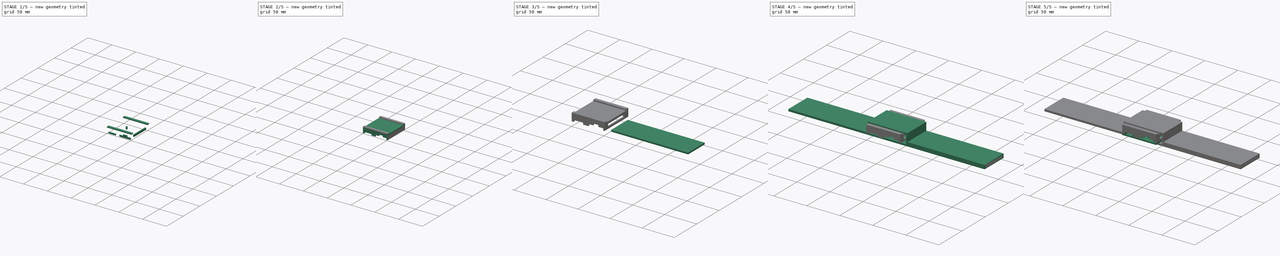
[diagram: build sequence overview — one tinted view per stage of 5, left to right]
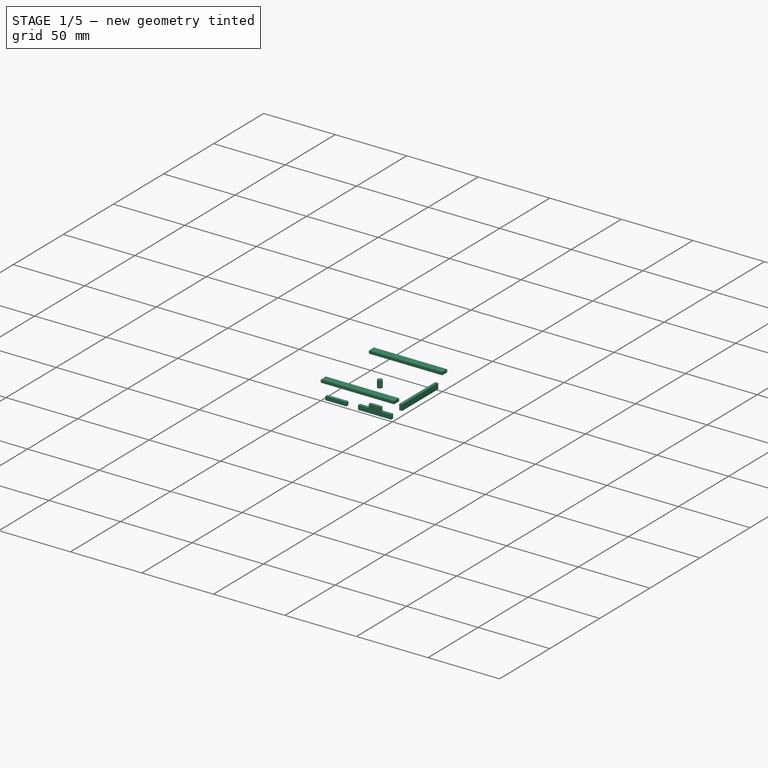
[diagram: stage 1 of 5 — iso view after this stage's code; geometry added in this stage tinted green]
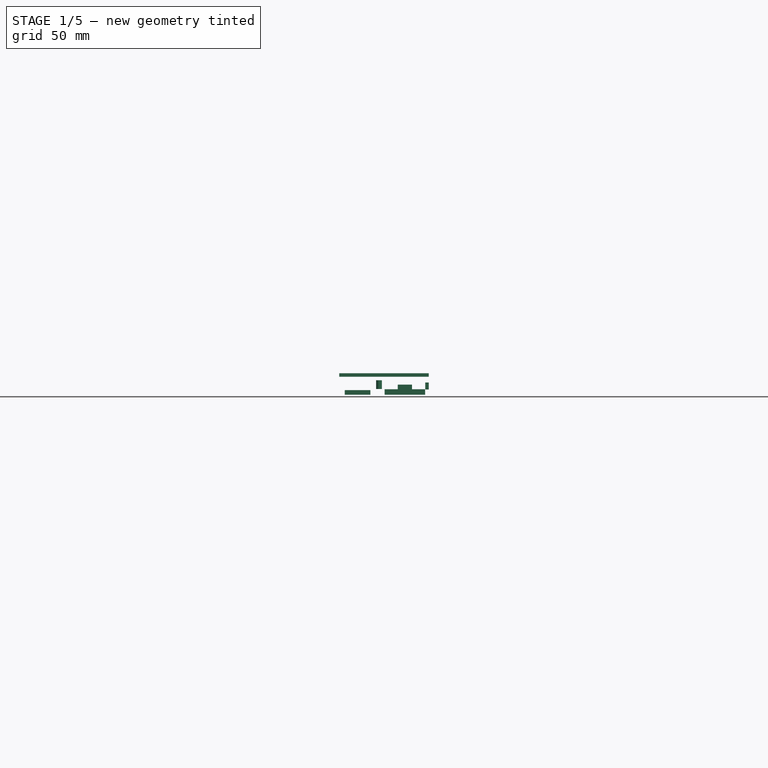
[diagram: stage 1 of 5 — front view after this stage's code; geometry added in this stage tinted green]
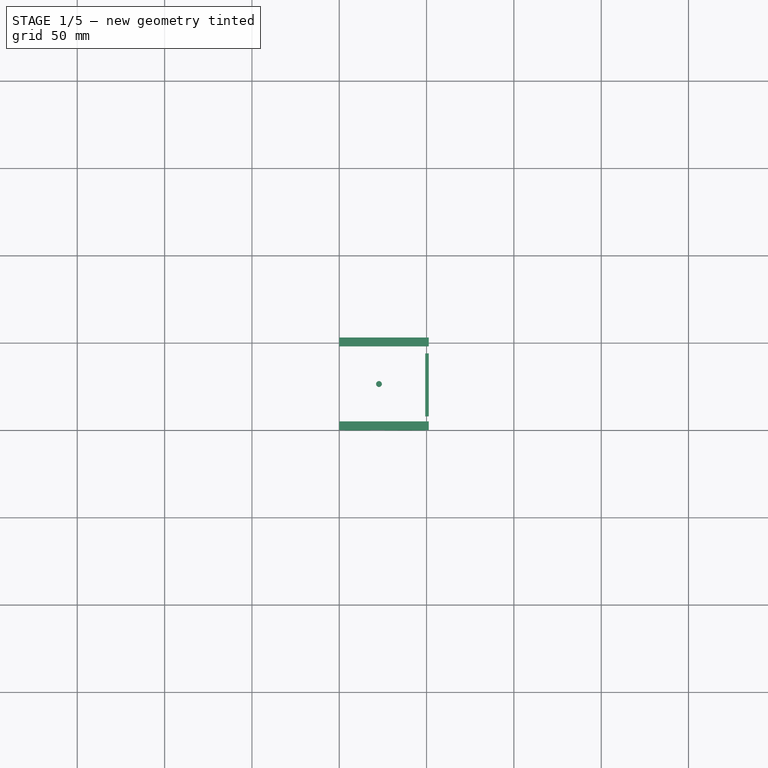
[diagram: stage 1 of 5 — top view after this stage's code; geometry added in this stage tinted green]
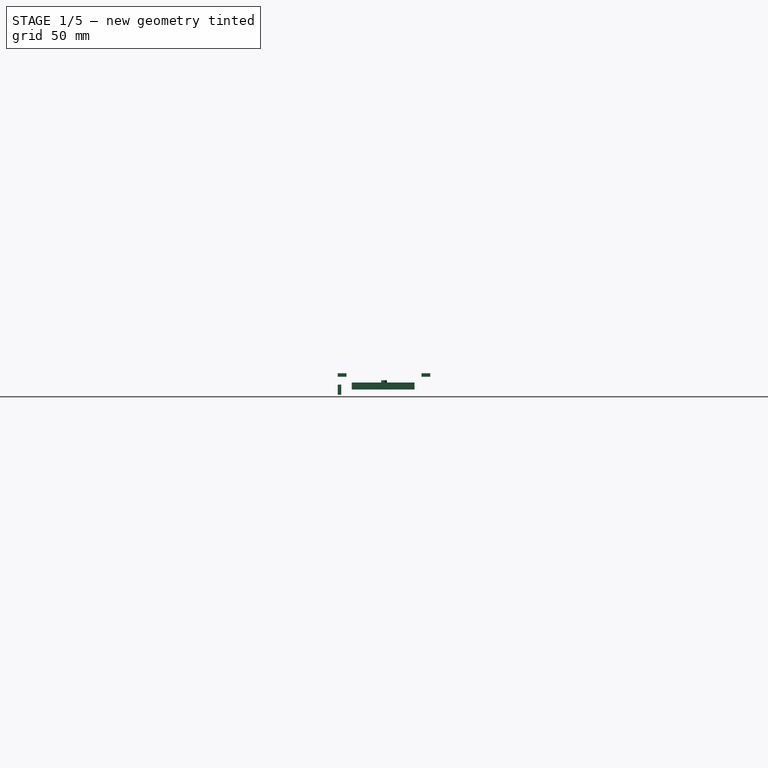
[diagram: stage 1 of 5 — right view after this stage's code; geometry added in this stage tinted green]
FCSTD DOCUMENT  (FreeCAD 0.20R29410 (Git))
Label: armBandV2
License: All rights reserved
LicenseURL: http://en.wikipedia.org/wiki/All_rights_reserved
objects: Part::Feature×47, Sketcher::SketchObject×19, Part::Extrusion×19, Part::MultiFuse×7, App::Part×5, Part::Cut×5, Part::Box×1
note: 98 computed .brp shape members not serialized (recipe doc carries the construction recipe); baked Part::Feature solids carry a one-line shape summary decoded from their .brp

FEATURE [Part::Feature] Part__Feature094  label="m211"
  Placement = pos=(22.75,26.5,10) rot=(0,0,1;0rad)
  shape: bbox 3.801 x 3.801 x 12.02 mm, 126 faces (baked)
FEATURE [Sketcher::SketchObject] Sketch017
  FullyConstrained = true
  Placement = pos=(0,0,0) rot=(1,0,0;1.5708rad)
  sketch-geometry (4):
    g0: LineSegment StartX=33.5 StartY=7.8 StartZ=0 EndX=41.65 EndY=7.8 EndZ=0
    g1: LineSegment StartX=41.65 StartY=7.8 StartZ=0 EndX=41.65 EndY=5.15 EndZ=0
    g2: LineSegment StartX=41.65 StartY=5.15 StartZ=0 EndX=33.5 EndY=5.15 EndZ=0
    g3: LineSegment StartX=33.5 StartY=5.15 StartZ=0 EndX=33.5 EndY=7.8 EndZ=0
  constraints (12):
    c: Coincident(g0,g1)
    c: Coincident(g1,g2)
    c: Coincident(g2,g3)
    c: Coincident(g3,g0)
    c: Horizontal(g0)
    c: Horizontal(g2)
    c: Vertical(g1)
    c: Vertical(g3)
    c: DistanceX(g2) = 33.5
    c: DistanceY(g2) = 5.15
    c: DistanceX(g0,g0) = 8.15
    c: DistanceY(g3,g3) = 2.65
FEATURE [Part::Extrusion] Extrude013  label="topCut001"
  Base = -> Sketch017
  Dir = (0,-1,-3e-16)
  DirMode = 2
  FaceMakerClass = Part::FaceMakerBullseye
  LengthFwd = 2
  LengthRev = 0
  Reversed = true
  Solid = true
  Symmetric = false
FEATURE [Sketcher::SketchObject] Sketch010
  FullyConstrained = true
  Placement = pos=(0,0,0) rot=(1,0,0;1.5708rad)
  sketch-geometry (8):
    g0: LineSegment StartX=3.15 StartY=4.65 StartZ=0 EndX=17.85 EndY=4.65 EndZ=0
    g1: LineSegment StartX=17.85 StartY=4.65 StartZ=0 EndX=17.85 EndY=2 EndZ=0
    g2: LineSegment StartX=17.85 StartY=2 StartZ=0 EndX=3.15 EndY=2 EndZ=0
    g3: LineSegment StartX=3.15 StartY=2 StartZ=0 EndX=3.15 EndY=4.65 EndZ=0
    g4: LineSegment StartX=26 StartY=5.15 StartZ=0 EndX=49.15 EndY=5.15 EndZ=0
    g5: LineSegment StartX=49.15 StartY=5.15 StartZ=0 EndX=49.15 EndY=2 EndZ=0
    g6: LineSegment StartX=49.15 StartY=2 StartZ=0 EndX=26 EndY=2 EndZ=0
    g7: LineSegment StartX=26 StartY=2 StartZ=0 EndX=26 EndY=5.15 EndZ=0
  constraints (24):
    c: Coincident(g0,g1)
    c: Coincident(g1,g2)
    c: Coincident(g2,g3)
    c: Coincident(g3,g0)
    c: Horizontal(g0)
    c: Horizontal(g2)
    c: Vertical(g1)
    c: Vertical(g3)
    c: Coincident(g4,g5)
    c: Coincident(g5,g6)
    c: Coincident(g6,g7)
    c: Coincident(g7,g4)
    c: Horizontal(g4)
    c: Horizontal(g6)
    c: Vertical(g5)
    c: Vertical(g7)
    c: DistanceY(g2) = 2
    c: DistanceX(g2) = 3.15
    c: DistanceY(g2,g0) = 2.65
    c: DistanceX(g0,g0) = 14.7
    c: DistanceX(g6) = 26
    c: DistanceX(g6,g5) = 23.15
    c: DistanceY(g6,g4) = 3.15
    c: DistanceY(g6) = 2
FEATURE [Part::Extrusion] Extrude006  label="topCuts"
  Base = -> Sketch010
  Dir = (0,-1,2e-16)
  DirMode = 2
  FaceMakerClass = Part::FaceMakerBullseye
  LengthFwd = 2
  LengthRev = 0
  Reversed = true
  Solid = true
  Symmetric = false
FEATURE [Sketcher::SketchObject] Sketch
  FullyConstrained = true
  Placement = pos=(0,0,10.25) rot=(0,0,1;0rad)
  sketch-geometry (1):
    g0: Circle CenterX=22.75 CenterY=26.5 CenterZ=0 NormalX=0 NormalY=0 NormalZ=1 AngleXU=0 Radius=1.65
  constraints (3):
    c: DistanceX(g0) = 22.75
    c: DistanceY(g0) = 26.5
    c: Diameter(g0) = 3.3
FEATURE [Part::Extrusion] Extrude026  label="topCut"
  Base = -> Sketch
  Dir = (0,0,1)
  DirMode = 2
  FaceMakerClass = Part::FaceMakerBullseye
  LengthFwd = 5
  LengthRev = 0
  Reversed = true
  Solid = true
  Symmetric = false
FEATURE [Part::MultiFuse] Fusion007  label="topCuts001"
  Shapes = -> [Extrude026,Extrude013,Extrude006]
FEATURE [Sketcher::SketchObject] Sketch029
  FullyConstrained = true
  Placement = pos=(0,0,12.25) rot=(0,0,1;0rad)
  sketch-geometry (8):
    g0: LineSegment StartX=0 StartY=0 StartZ=0 EndX=51.25 EndY=0 EndZ=0
    g1: LineSegment StartX=51.25 StartY=0 StartZ=0 EndX=51.25 EndY=5 EndZ=0
    g2: LineSegment StartX=51.25 StartY=5 StartZ=0 EndX=0 EndY=5 EndZ=0
    g3: LineSegment StartX=0 StartY=5 StartZ=0 EndX=0 EndY=0 EndZ=0
    g4: LineSegment StartX=0 StartY=53 StartZ=0 EndX=51.25 EndY=53 EndZ=0
    g5: LineSegment StartX=51.25 StartY=53 StartZ=0 EndX=51.25 EndY=48 EndZ=0
    g6: LineSegment StartX=51.25 StartY=48 StartZ=0 EndX=0 EndY=48 EndZ=0
    g7: LineSegment StartX=0 StartY=48 StartZ=0 EndX=0 EndY=53 EndZ=0
  constraints (23):
    c: Coincident(g0,g1)
    c: Coincident(g1,g2)
    c: Coincident(g2,g3)
    c: Coincident(g3,g0)
    c: Horizontal(g0)
    c: Horizontal(g2)
    c: Vertical(g1)
    c: Vertical(g3)
    c: Coincident(g0,g-1)
    c: DistanceY(g3,g3) = 5
    c: DistanceX(g2,g2) = 51.25
    c: Coincident(g4,g5)
    c: Coincident(g5,g6)
    c: Coincident(g6,g7)
    c: Coincident(g7,g4)
    c: Horizontal(g4)
    c: Horizontal(g6)
    c: Vertical(g5)
    c: Vertical(g7)
    c: PointOnObject(g4,g-2)
    c: DistanceX(g1,g5) = 0
    c: DistanceY(g6,g4) = 5
    c: DistanceY(g4) = 53
FEATURE [Part::Extrusion] Extrude027  label="top006"
  Base = -> Sketch029
  Dir = (0,0,1)
  DirMode = 2
  FaceMakerClass = Part::FaceMakerBullseye
  LengthFwd = 2
  LengthRev = 0
  Solid = true
  Symmetric = false
FEATURE [Sketcher::SketchObject] Sketch035
  FullyConstrained = true
  Placement = pos=(49.25,0,0) rot=(0.57735,0.57735,0.57735;2.0944rad)
  sketch-geometry (4):
    g0: LineSegment StartX=8 StartY=9 StartZ=0 EndX=44 EndY=9 EndZ=0
    g1: LineSegment StartX=44 StartY=9 StartZ=0 EndX=44 EndY=5 EndZ=0
    g2: LineSegment StartX=44 StartY=5 StartZ=0 EndX=8 EndY=5 EndZ=0
    g3: LineSegment StartX=8 StartY=5 StartZ=0 EndX=8 EndY=9 EndZ=0
  constraints (12):
    c: Coincident(g0,g1)
    c: Coincident(g1,g2)
    c: Coincident(g2,g3)
    c: Coincident(g3,g0)
    c: Horizontal(g0)
    c: Horizontal(g2)
    c: Vertical(g1)
    c: Vertical(g3)
    c: DistanceY(g3,g3) = 4
    c: DistanceY(g2) = 5
    c: DistanceX(g2) = 8
    c: DistanceX(g0,g0) = 36
FEATURE [Part::Extrusion] Extrude033  label="topCut002"
  Base = -> Sketch035
  Dir = (1,-2e-16,2e-16)
  DirMode = 2
  FaceMakerClass = Part::FaceMakerBullseye
  LengthFwd = 2
  LengthRev = 0
  Solid = true
  Symmetric = false
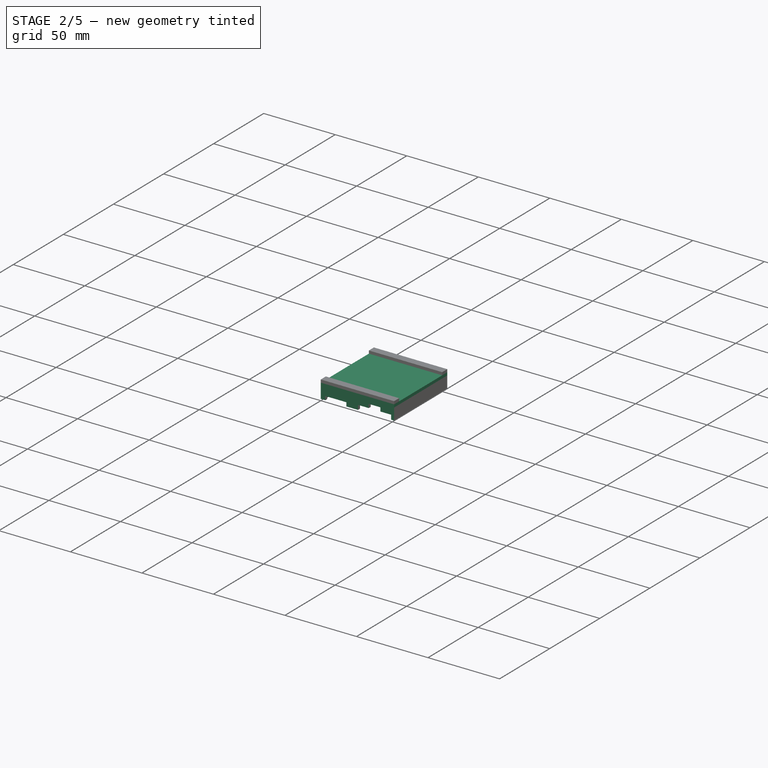
[diagram: stage 2 of 5 — iso view after this stage's code; geometry added in this stage tinted green]
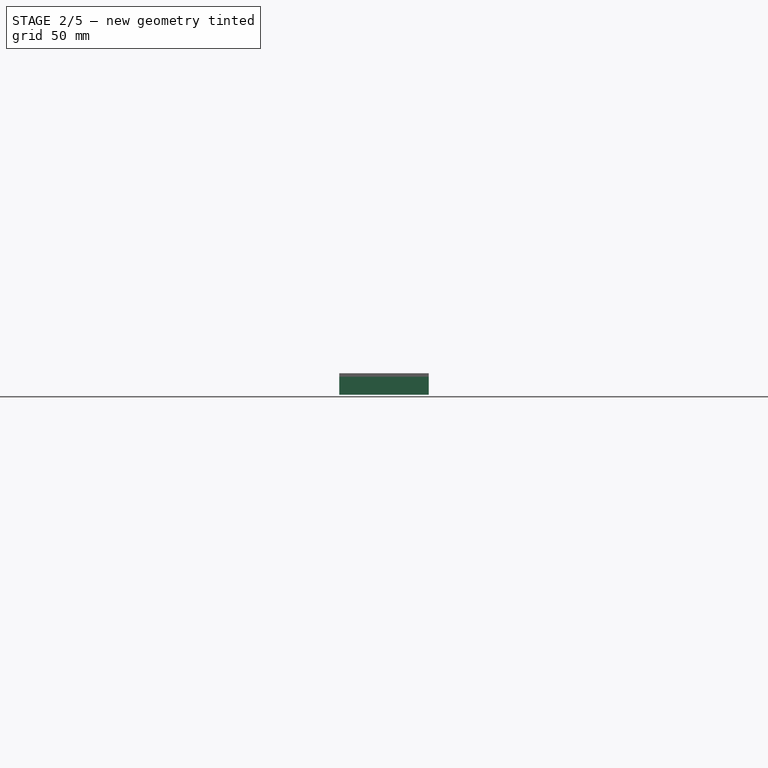
[diagram: stage 2 of 5 — front view after this stage's code; geometry added in this stage tinted green]
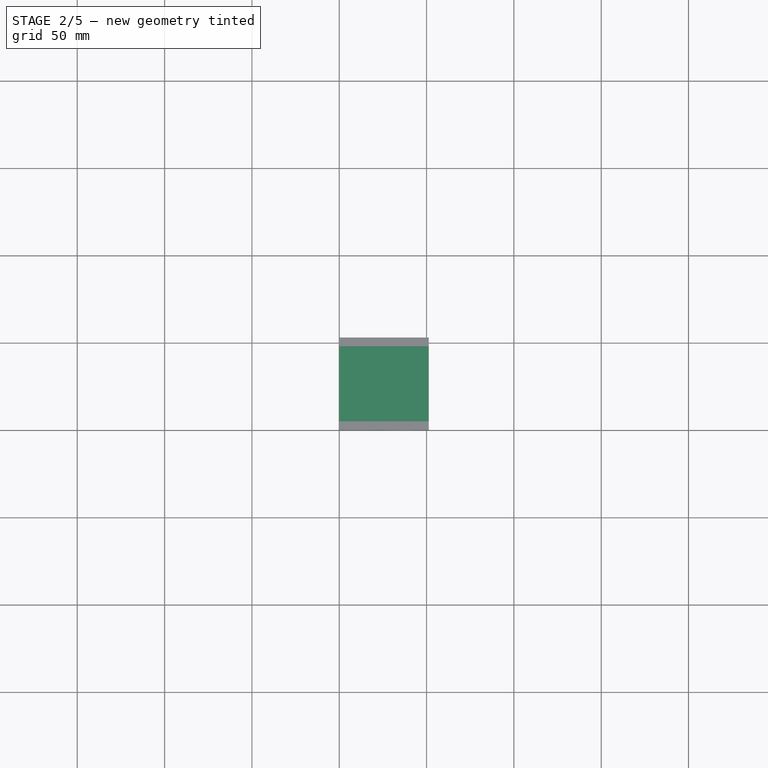
[diagram: stage 2 of 5 — top view after this stage's code; geometry added in this stage tinted green]
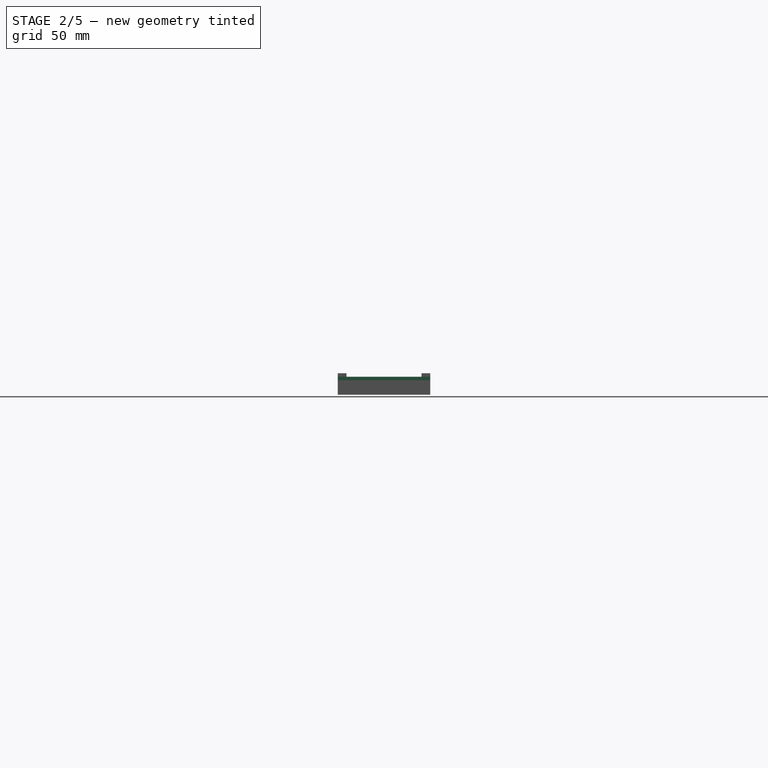
[diagram: stage 2 of 5 — right view after this stage's code; geometry added in this stage tinted green]
FEATURE [Sketcher::SketchObject] Sketch007
  FullyConstrained = true
  Placement = pos=(0,0,2) rot=(0,0,1;0rad)
  sketch-geometry (24):
    g0: Circle CenterX=28.675 CenterY=48.25 CenterZ=0 NormalX=0 NormalY=0 NormalZ=1 AngleXU=0 Radius=1
    g1: Circle CenterX=46.475 CenterY=48.25 CenterZ=0 NormalX=0 NormalY=0 NormalZ=1 AngleXU=0 Radius=1
    g2: Circle CenterX=28.675 CenterY=2.55 CenterZ=0 NormalX=0 NormalY=0 NormalZ=1 AngleXU=0 Radius=1
    g3: Circle CenterX=46.475 CenterY=2.55 CenterZ=0 NormalX=0 NormalY=0 NormalZ=1 AngleXU=0 Radius=1
    g4: LineSegment StartX=3.25 StartY=0 StartZ=0 EndX=5.25 EndY=0 EndZ=0
    g5: LineSegment StartX=5.25 StartY=0 StartZ=0 EndX=5.25 EndY=5.25 EndZ=0
    g6: LineSegment StartX=5.25 StartY=5.25 StartZ=0 EndX=6.75 EndY=5.25 EndZ=0
    g7: LineSegment StartX=6.75 StartY=5.25 StartZ=0 EndX=6.75 EndY=7.25 EndZ=0
    g8: LineSegment StartX=6.75 StartY=7.25 StartZ=0 EndX=3.25 EndY=7.25 EndZ=0
    g9: LineSegment StartX=3.25 StartY=7.25 StartZ=0 EndX=3.25 EndY=0 EndZ=0
    g10: LineSegment StartX=17.75 StartY=0 StartZ=0 EndX=15.75 EndY=0 EndZ=0
    g11: LineSegment StartX=15.75 StartY=0 StartZ=0 EndX=15.75 EndY=1.1 EndZ=0
    g12: LineSegment StartX=15.75 StartY=1.1 StartZ=0 EndX=15.3 EndY=1.1 EndZ=0
    g13: LineSegment StartX=15.3 StartY=1.1 StartZ=0 EndX=15.3 EndY=1.9 EndZ=0
    g14: LineSegment StartX=15.3 StartY=1.9 StartZ=0 EndX=15.75 EndY=1.9 EndZ=0
    g15: LineSegment StartX=15.75 StartY=1.9 StartZ=0 EndX=15.75 EndY=5.25 EndZ=0
    g16: LineSegment StartX=15.75 StartY=5.25 StartZ=0 EndX=14.25 EndY=5.25 EndZ=0
    g17: LineSegment StartX=14.25 StartY=5.25 StartZ=0 EndX=14.25 EndY=7.25 EndZ=0
    g18: LineSegment StartX=14.25 StartY=7.25 StartZ=0 EndX=17.75 EndY=7.25 EndZ=0
    g19: LineSegment StartX=17.75 StartY=7.25 StartZ=0 EndX=17.75 EndY=0 EndZ=0
    g20: LineSegment StartX=19.5 StartY=35 StartZ=0 EndX=19.5 EndY=20 EndZ=0
    g21: LineSegment StartX=19.5 StartY=20 StartZ=0 EndX=25.9 EndY=20 EndZ=0
    g22: LineSegment StartX=19.5 StartY=35 StartZ=0 EndX=25.9 EndY=35 EndZ=0
    g23: LineSegment StartX=25.9 StartY=20 StartZ=0 EndX=25.9 EndY=35 EndZ=0
  constraints (72):
    c: PointOnObject(g4,g-1)
    c: PointOnObject(g4,g-1)
    c: Coincident(g4,g5)
    c: Vertical(g5)
    c: Coincident(g6,g5)
    c: Horizontal(g6)
    c: Coincident(g7,g6)
    c: Vertical(g7)
    c: Coincident(g8,g7)
    c: Coincident(g9,g8)
    c: PointOnObject(g10,g-1)
    c: PointOnObject(g10,g-1)
    c: Coincident(g10,g11)
    c: Vertical(g11)
    c: Coincident(g11,g12)
    c: Horizontal(g12)
    c: Coincident(g12,g13)
    c: Vertical(g13)
    c: Coincident(g13,g14)
    c: Coincident(g14,g15)
    c: Coincident(g15,g16)
    c: Coincident(g16,g17)
    c: Vertical(g17)
    c: Coincident(g17,g18)
    c: Coincident(g19,g10)
    c: Vertical(g20)
    c: Coincident(g21,g20)
    c: Horizontal(g21)
    c: Coincident(g22,g20)
    c: Horizontal(g22)
    c: Coincident(g23,g21)
    c: Coincident(g23,g22)
    c: Vertical(g23)
    c: DistanceX(g21,g21) = 6.4
    c: DistanceX(g20) = 19.5
    c: DistanceX(g4) = 3.25
    c: DistanceX(g4,g4) = 2
    c: Vertical(g9)
    c: DistanceY(g5,g8) = 2
    c: Horizontal(g8)
    c: DistanceX(g6,g6) = 1.5
    c: DistanceX(g16,g15) = 1.5
    c: DistanceY(g17,g7) = 0
    c: Horizontal(g18)
    c: Horizontal(g16)
    c: Vertical(g15)
    c: Horizontal(g14)
    c: Vertical(g19)
    c: DistanceX(g10,g10) = 2
    c: DistanceX(g11) = 15.75
    c: DistanceY(g11) = 1.1
    c: DistanceY(g13,g13) = 0.8
    c: DistanceX(g11,g14) = 0
    c: DistanceY(g16,g17) = 2
    c: DistanceY(g5) = 5.25
    c: DistanceX(g14,g14) = 0.45
    c: DistanceX(g2) = 28.675
    c: DistanceY(g2) = 2.55
    c: DistanceY(g2,g3) = 0
    c: DistanceX(g2,g3) = 17.8
    c: DistanceX(g0,g2) = 0
    c: DistanceY(g2,g0) = 45.7
    c: DistanceY(g1,g0) = 0
    c: DistanceX(g1,g3) = 0
    c: Equal(g0,g1)
    c: Equal(g0,g2)
    c: Equal(g0,g3)
    c: Diameter(g0) = 2
    c: Coincident(g18,g19)
    c: Coincident(g4,g9)
    c: DistanceY(g20) = 20
    c: DistanceY(g20,g20) = 15
FEATURE [Sketcher::SketchObject] Sketch008
  FullyConstrained = true
  sketch-geometry (4):
    g0: LineSegment StartX=0 StartY=0 StartZ=0 EndX=51.25 EndY=0 EndZ=0
    g1: LineSegment StartX=51.25 StartY=0 StartZ=0 EndX=51.25 EndY=53 EndZ=0
    g2: LineSegment StartX=51.25 StartY=53 StartZ=0 EndX=0 EndY=53 EndZ=0
    g3: LineSegment StartX=0 StartY=53 StartZ=0 EndX=0 EndY=0 EndZ=0
  constraints (11):
    c: Coincident(g0,g1)
    c: Coincident(g1,g2)
    c: Coincident(g2,g3)
    c: Coincident(g3,g0)
    c: Horizontal(g0)
    c: Horizontal(g2)
    c: Vertical(g1)
    c: Vertical(g3)
    c: Coincident(g0,g-1)
    c: DistanceX(g1) = 51.25
    c: DistanceY(g2) = 53
FEATURE [Part::Extrusion] Extrude003  label="top001"
  Base = -> Sketch008
  Dir = (0,0,1)
  DirMode = 2
  FaceMakerClass = Part::FaceMakerBullseye
  LengthFwd = 2
  LengthRev = 0
  Placement = pos=(0,0,10.25) rot=(0,0,1;0rad)
  Solid = true
  Symmetric = false
FEATURE [Sketcher::SketchObject] Sketch009
  FullyConstrained = true
  sketch-geometry (8):
    g0: LineSegment StartX=0 StartY=0 StartZ=0 EndX=51.25 EndY=0 EndZ=0
    g1: LineSegment StartX=51.25 StartY=0 StartZ=0 EndX=51.25 EndY=53 EndZ=0
    g2: LineSegment StartX=51.25 StartY=53 StartZ=0 EndX=0 EndY=53 EndZ=0
    g3: LineSegment StartX=0 StartY=53 StartZ=0 EndX=0 EndY=0 EndZ=0
    g4: LineSegment StartX=2 StartY=2 StartZ=0 EndX=49.25 EndY=2 EndZ=0
    g5: LineSegment StartX=49.25 StartY=2 StartZ=0 EndX=49.25 EndY=51 EndZ=0
    g6: LineSegment StartX=49.25 StartY=51 StartZ=0 EndX=2 EndY=51 EndZ=0
    g7: LineSegment StartX=2 StartY=51 StartZ=0 EndX=2 EndY=2 EndZ=0
  constraints (23):
    c: Coincident(g0,g1)
    c: Coincident(g1,g2)
    c: Coincident(g2,g3)
    c: Coincident(g3,g0)
    c: Horizontal(g0)
    c: Horizontal(g2)
    c: Vertical(g1)
    c: Vertical(g3)
    c: Coincident(g0,g-1)
    c: DistanceX(g1) = 51.25
    c: DistanceY(g2) = 53
    c: Coincident(g4,g5)
    c: Coincident(g5,g6)
    c: Coincident(g6,g7)
    c: Coincident(g7,g4)
    c: Horizontal(g4)
    c: Horizontal(g6)
    c: Vertical(g5)
    c: Vertical(g7)
    c: DistanceY(g4) = 2
    c: DistanceX(g4) = 2
    c: DistanceY(g6,g2) = 2
    c: DistanceX(g5,g1) = 2
FEATURE [Part::Extrusion] Extrude004  label="top"
  Base = -> Sketch009
  Dir = (0,0,1)
  DirMode = 2
  FaceMakerClass = Part::FaceMakerBullseye
  LengthFwd = 10.25
  LengthRev = 0
  Placement = pos=(0,0,2) rot=(0,0,1;0rad)
  Solid = true
  Symmetric = false
FEATURE [Part::MultiFuse] Fusion  label="top002"
  Shapes = -> [Extrude003,Extrude004]
FEATURE [Sketcher::SketchObject] Sketch012
  FullyConstrained = true
  Placement = pos=(0,0,10.25) rot=(0,0,1;0rad)
  sketch-geometry (1):
    g0: Circle CenterX=22.75 CenterY=26.5 CenterZ=0 NormalX=0 NormalY=0 NormalZ=1 AngleXU=0 Radius=3
  constraints (3):
    c: DistanceY(g0) = 26.5
    c: Diameter(g0) = 6
    c: DistanceX(g0) = 22.75
FEATURE [Part::Extrusion] Extrude008  label="top003"
  Base = -> Sketch012
  Dir = (0,0,1)
  DirMode = 2
  FaceMakerClass = Part::FaceMakerBullseye
  LengthFwd = 5
  LengthRev = 0
  Reversed = true
  Solid = true
  Symmetric = false
FEATURE [Sketcher::SketchObject] Sketch028
  FullyConstrained = true
  Placement = pos=(0,0,10.25) rot=(0,0,1;0rad)
  sketch-geometry (8):
    g0: LineSegment StartX=26.15 StartY=51 StartZ=0 EndX=31.15 EndY=51 EndZ=0
    g1: LineSegment StartX=31.15 StartY=51 StartZ=0 EndX=31.15 EndY=46 EndZ=0
    g2: LineSegment StartX=31.15 StartY=46 StartZ=0 EndX=26.15 EndY=46 EndZ=0
    g3: LineSegment StartX=26.15 StartY=46 StartZ=0 EndX=26.15 EndY=51 EndZ=0
    g4: LineSegment StartX=44.25 StartY=51 StartZ=0 EndX=49.25 EndY=51 EndZ=0
    g5: LineSegment StartX=49.25 StartY=51 StartZ=0 EndX=49.25 EndY=46 EndZ=0
    g6: LineSegment StartX=49.25 StartY=46 StartZ=0 EndX=44.25 EndY=46 EndZ=0
    g7: LineSegment StartX=44.25 StartY=46 StartZ=0 EndX=44.25 EndY=51 EndZ=0
  constraints (24):
    c: Coincident(g0,g1)
    c: Coincident(g1,g2)
    c: Coincident(g2,g3)
    c: Coincident(g3,g0)
    c: Horizontal(g0)
    c: Horizontal(g2)
    c: Vertical(g1)
    c: Vertical(g3)
    c: Coincident(g4,g5)
    c: Coincident(g5,g6)
    c: Coincident(g6,g7)
    c: Coincident(g7,g4)
    c: Horizontal(g4)
    c: Horizontal(g6)
    c: Vertical(g5)
    c: Vertical(g7)
    c: DistanceX(g0) = 26.15
    c: DistanceY(g0) = 51
    c: DistanceY(g3,g3) = 5
    c: DistanceX(g2,g2) = 5
    c: DistanceY(g4,g0) = 0
    c: DistanceX(g5) = 49.25
    c: DistanceY(g1,g5) = 0
    c: DistanceX(g6,g5) = 5
FEATURE [Part::Extrusion] Extrude025  label="topAddOns"
  Base = -> Sketch028
  Dir = (0,0,1)
  DirMode = 2
  FaceMakerClass = Part::FaceMakerBullseye
  LengthFwd = 5
  LengthRev = 0
  Reversed = true
  Solid = true
  Symmetric = false
FEATURE [Part::MultiFuse] Fusion005  label="top004"
  Shapes = -> [Extrude008,Fusion,Extrude025]
FEATURE [Part::Cut] Cut  label="top005"
  Base = -> Fusion005
  Tool = -> Fusion007
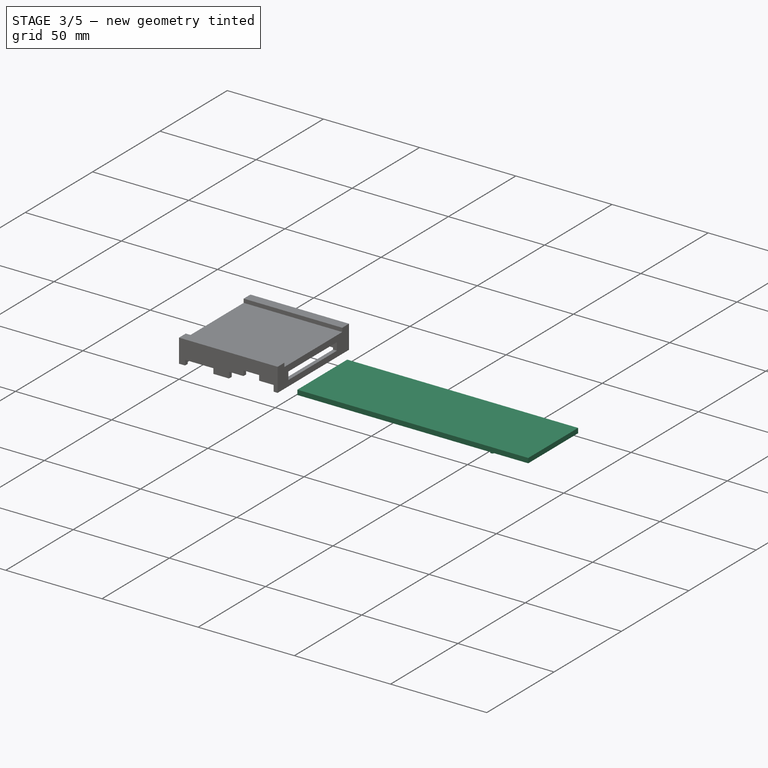
[diagram: stage 3 of 5 — iso view after this stage's code; geometry added in this stage tinted green]
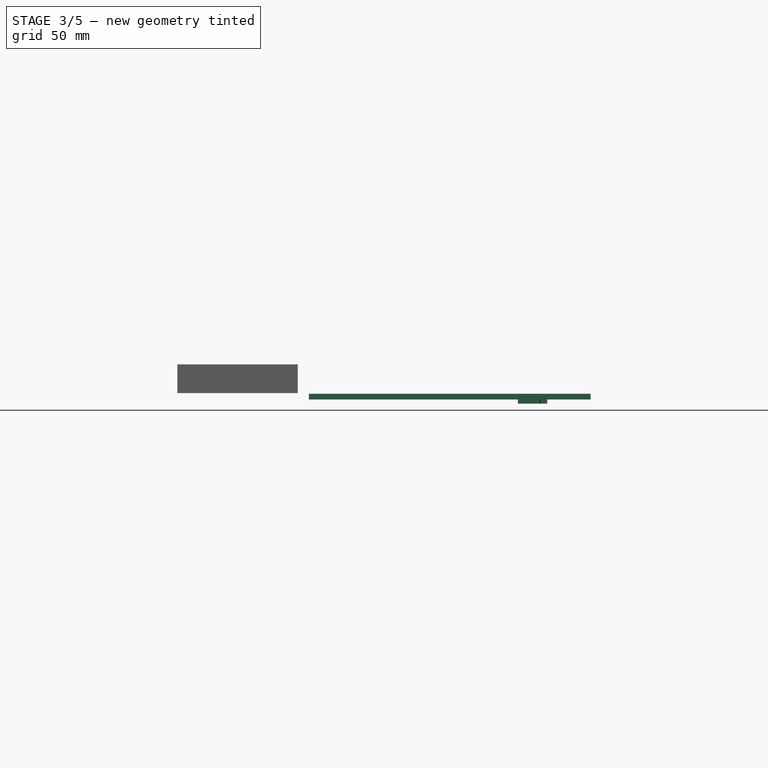
[diagram: stage 3 of 5 — front view after this stage's code; geometry added in this stage tinted green]
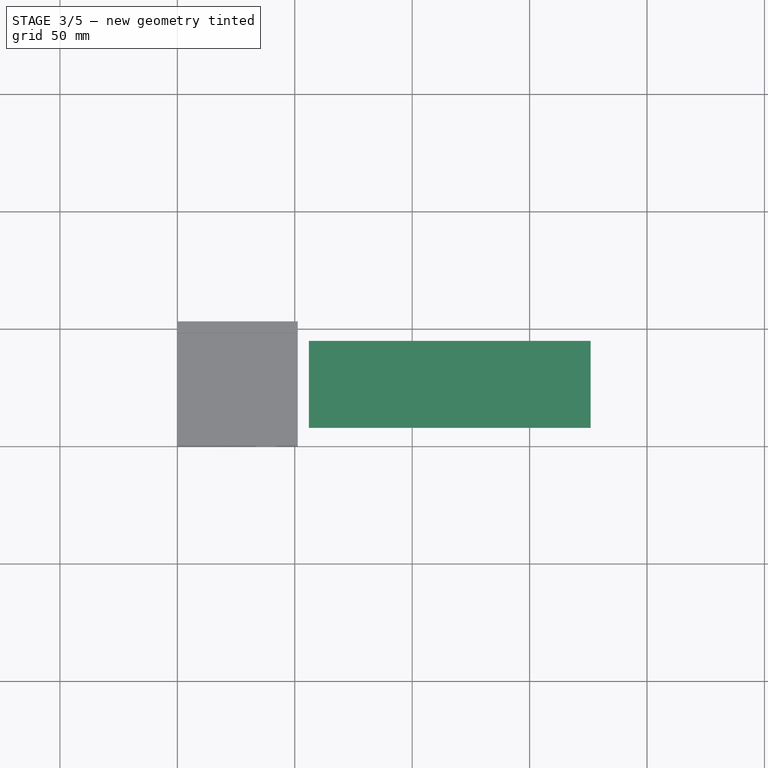
[diagram: stage 3 of 5 — top view after this stage's code; geometry added in this stage tinted green]
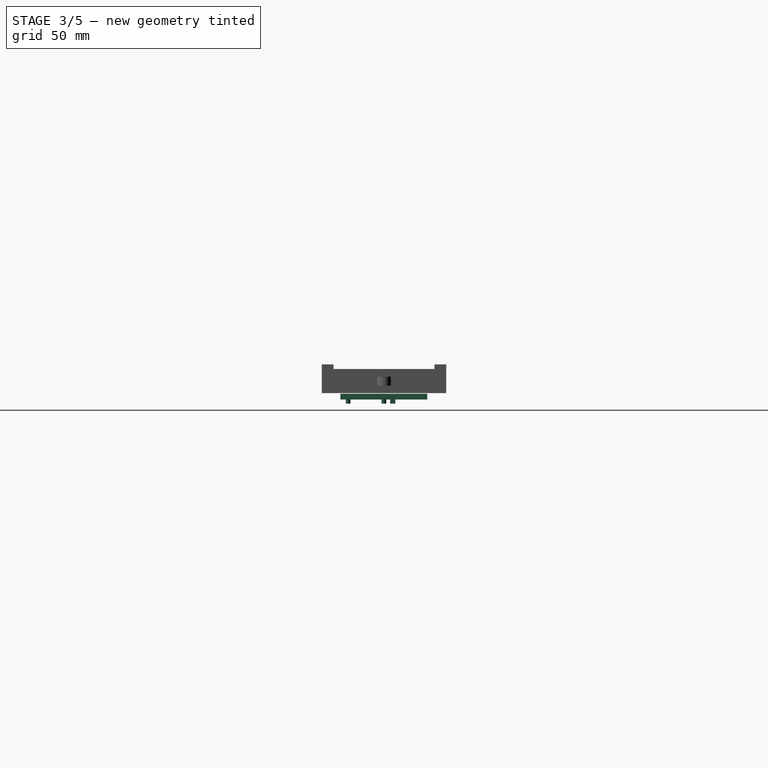
[diagram: stage 3 of 5 — right view after this stage's code; geometry added in this stage tinted green]
FEATURE [Part::MultiFuse] Fusion008  label="top007"
  Shapes = -> [Cut,Extrude027]
FEATURE [Sketcher::SketchObject] Sketch031
  FullyConstrained = false
  Placement = pos=(56,0,0) rot=(0.57735,0.57735,0.57735;2.0944rad)
  sketch-geometry (4):
    g0: LineSegment StartX=7.91253 StartY=1.75 StartZ=0 EndX=44.9125 EndY=1.75 EndZ=0
    g1: LineSegment StartX=44.9125 StartY=1.75 StartZ=0 EndX=44.9125 EndY=-0.75 EndZ=0
    g2: LineSegment StartX=44.9125 StartY=-0.75 StartZ=0 EndX=7.91253 EndY=-0.75 EndZ=0
    g3: LineSegment StartX=7.91253 StartY=-0.75 StartZ=0 EndX=7.91253 EndY=1.75 EndZ=0
  constraints (11):
    c: Coincident(g0,g1)
    c: Coincident(g1,g2)
    c: Coincident(g2,g3)
    c: Coincident(g3,g0)
    c: Horizontal(g0)
    c: Horizontal(g2)
    c: Vertical(g1)
    c: Vertical(g3)
    c: DistanceY(g3,g3) = 2.5
    c: DistanceY(g2) = -0.75
    c: DistanceX(g0,g0) = 37
FEATURE [Part::Extrusion] Extrude029
  Base = -> Sketch031
  Dir = (1,-2e-16,2e-16)
  DirMode = 2
  FaceMakerClass = Part::FaceMakerBullseye
  LengthFwd = 120
  LengthRev = 0
  Solid = true
  Symmetric = false
FEATURE [Sketcher::SketchObject] Sketch033
  FullyConstrained = true
  Placement = pos=(0,0,1.5) rot=(0,0,1;0rad)
  sketch-geometry (4):
    g0: LineSegment StartX=127.5 StartY=44.5 StartZ=0 EndX=175 EndY=44.5 EndZ=0
    g1: LineSegment StartX=175 StartY=44.5 StartZ=0 EndX=175 EndY=8.5 EndZ=0
    g2: LineSegment StartX=175 StartY=8.5 StartZ=0 EndX=127.5 EndY=8.5 EndZ=0
    g3: LineSegment StartX=127.5 StartY=8.5 StartZ=0 EndX=127.5 EndY=44.5 EndZ=0
  constraints (12):
    c: Coincident(g0,g1)
    c: Coincident(g1,g2)
    c: Coincident(g2,g3)
    c: Coincident(g3,g0)
    c: Horizontal(g0)
    c: Horizontal(g2)
    c: Vertical(g1)
    c: Vertical(g3)
    c: DistanceY(g2) = 8.5
    c: DistanceY(g3,g3) = 36
    c: DistanceX(g1) = 175
    c: DistanceX(g2,g2) = 47.5
FEATURE [Part::Extrusion] Extrude031
  Base = -> Sketch033
  Dir = (0,0,1)
  DirMode = 2
  FaceMakerClass = Part::FaceMakerBullseye
  LengthFwd = 2
  LengthRev = 0
  Reversed = true
  Solid = true
  Symmetric = false
FEATURE [Sketcher::SketchObject] Sketch034
  FullyConstrained = true
  Placement = pos=(0,0,-0.5) rot=(0,0,1;0rad)
  sketch-geometry (6):
    g0: Circle CenterX=155.15 CenterY=11.2 CenterZ=0 NormalX=0 NormalY=0 NormalZ=1 AngleXU=0 Radius=1
    g1: Circle CenterX=155.15 CenterY=26.45 CenterZ=0 NormalX=0 NormalY=0 NormalZ=1 AngleXU=0 Radius=1
    g2: LineSegment StartX=145 StartY=31.35 StartZ=0 EndX=157.5 EndY=31.35 EndZ=0
    g3: LineSegment StartX=157.5 StartY=31.35 StartZ=0 EndX=157.5 EndY=29.1 EndZ=0
    g4: LineSegment StartX=157.5 StartY=29.1 StartZ=0 EndX=145 EndY=29.1 EndZ=0
    g5: LineSegment StartX=145 StartY=29.1 StartZ=0 EndX=145 EndY=31.35 EndZ=0
  constraints (18):
    c: Coincident(g2,g3)
    c: Coincident(g3,g4)
    c: Coincident(g4,g5)
    c: Coincident(g5,g2)
    c: Horizontal(g2)
    c: Horizontal(g4)
    c: Vertical(g3)
    c: Vertical(g5)
    c: DistanceX(g4) = 145
    c: DistanceX(g4,g4) = 12.5
    c: DistanceY(g4) = 29.1
    c: DistanceY(g4,g2) = 2.25
    c: DistanceX(g0) = 155.15
    c: DistanceX(g1,g0) = 0
    c: DistanceY(g0,g1) = 15.25
    c: DistanceY(g0) = 11.2
    c: Equal(g0,g1)
    c: Diameter(g0) = 2
FEATURE [Part::Extrusion] Extrude032
  Base = -> Sketch034
  Dir = (0,0,1)
  DirMode = 2
  FaceMakerClass = Part::FaceMakerBullseye
  LengthFwd = 2
  LengthRev = 0
  Reversed = true
  Solid = true
  Symmetric = false
FEATURE [Part::MultiFuse] Fusion009  label="sensorSheet"
  Shapes = -> [Extrude031,Extrude032]
FEATURE [Part::Cut] Cut004  label="top008"
  Base = -> Fusion008
  Tool = -> Extrude033
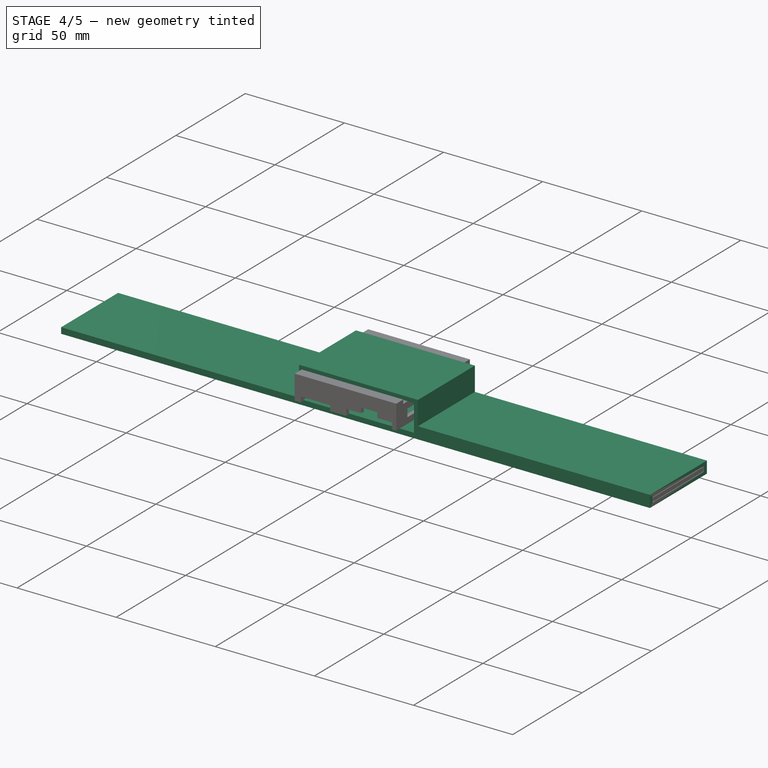
[diagram: stage 4 of 5 — iso view after this stage's code; geometry added in this stage tinted green]
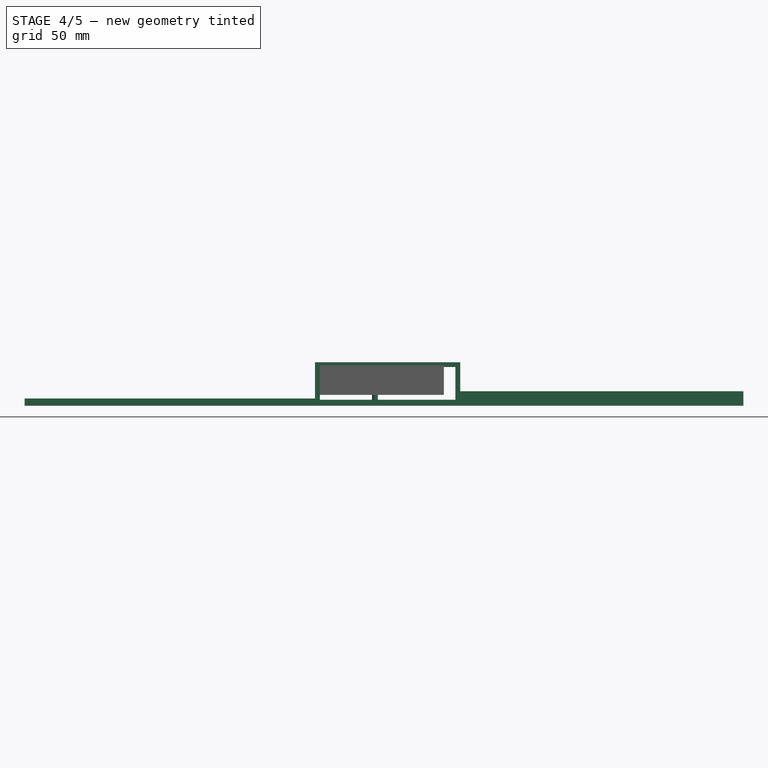
[diagram: stage 4 of 5 — front view after this stage's code; geometry added in this stage tinted green]
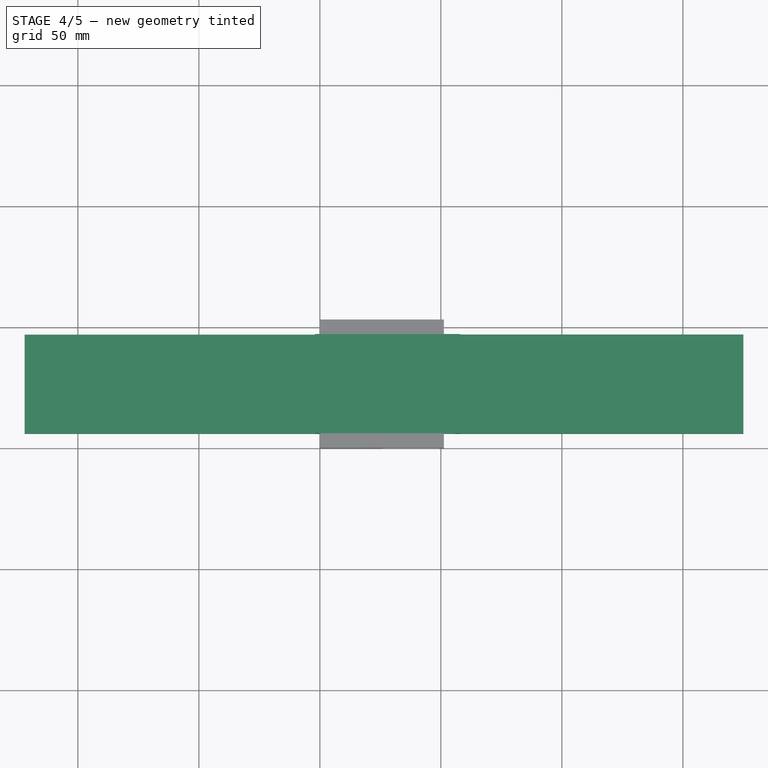
[diagram: stage 4 of 5 — top view after this stage's code; geometry added in this stage tinted green]
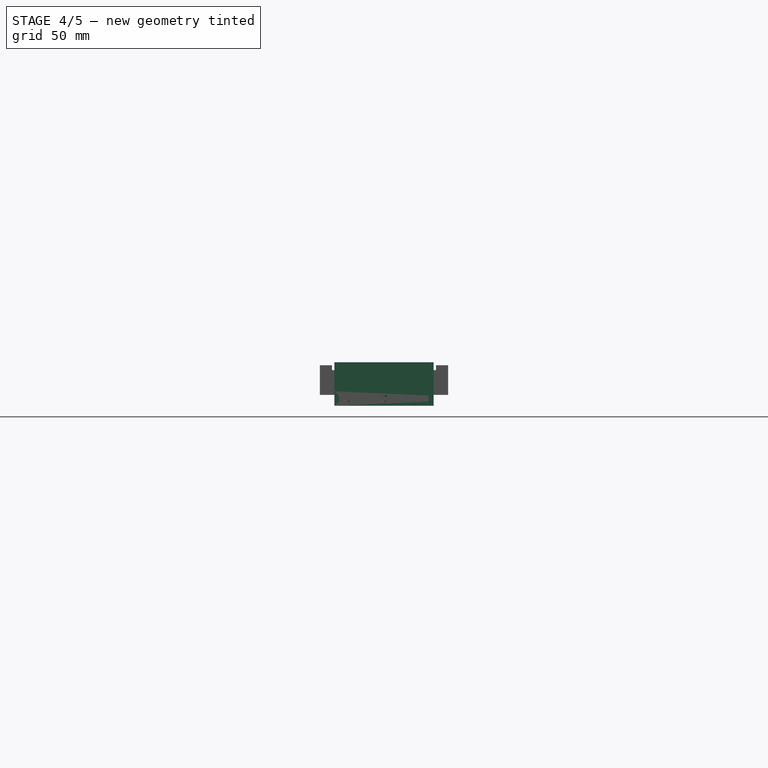
[diagram: stage 4 of 5 — right view after this stage's code; geometry added in this stage tinted green]
FEATURE [Sketcher::SketchObject] Sketch013
  FullyConstrained = true
  Placement = pos=(0,0,10.25) rot=(0,0,1;0rad)
  sketch-geometry (1):
    g0: Circle CenterX=22.75 CenterY=26.5 CenterZ=0 NormalX=0 NormalY=0 NormalZ=1 AngleXU=0 Radius=1.65
  constraints (3):
    c: DistanceY(g0) = 26.5
    c: Diameter(g0) = 3.3
    c: DistanceX(g0) = 22.75
FEATURE [Part::Extrusion] Extrude009  label="baseCut001"
  Base = -> Sketch013
  Dir = (0,0,1)
  DirMode = 2
  FaceMakerClass = Part::FaceMakerBullseye
  LengthFwd = 5
  LengthRev = 0
  Reversed = true
  Solid = true
  Symmetric = false
FEATURE [Sketcher::SketchObject] Sketch015
  FullyConstrained = true
  sketch-geometry (1):
    g0: Circle CenterX=22.75 CenterY=26.5 CenterZ=0 NormalX=0 NormalY=0 NormalZ=1 AngleXU=0 Radius=1.2
  constraints (3):
    c: DistanceY(g0) = 26.5
    c: Diameter(g0) = 2.4
    c: DistanceX(g0) = 22.75
FEATURE [Part::Extrusion] Extrude011  label="baseCut"
  Base = -> Sketch015
  Dir = (0,0,1)
  DirMode = 2
  FaceMakerClass = Part::FaceMakerBullseye
  LengthFwd = 10
  LengthRev = 0
  Solid = true
  Symmetric = false
FEATURE [Part::MultiFuse] Fusion006  label="baseCuts"
  Shapes = -> [Extrude011,Extrude009]
FEATURE [Sketcher::SketchObject] Sketch030
  FullyConstrained = true
  Placement = pos=(0,6,0) rot=(1,0,0;1.5708rad)
  sketch-geometry (12):
    g0: LineSegment StartX=175 StartY=3.5 StartZ=0 EndX=58 EndY=3.5 EndZ=0
    g1: LineSegment StartX=58 StartY=3.5 StartZ=0 EndX=58 EndY=15.5 EndZ=0
    g2: LineSegment StartX=-2 StartY=15.5 StartZ=0 EndX=-2 EndY=0.5 EndZ=0
    g3: LineSegment StartX=-2 StartY=0.5 StartZ=0 EndX=-122 EndY=0.5 EndZ=0
    g4: LineSegment StartX=-122 StartY=0.5 StartZ=0 EndX=-122 EndY=-2.5 EndZ=0
    g5: LineSegment StartX=-122 StartY=-2.5 StartZ=0 EndX=175 EndY=-2.5 EndZ=0
    g6: LineSegment StartX=175 StartY=-2.5 StartZ=0 EndX=175 EndY=3.5 EndZ=0
    g7: LineSegment StartX=0 StartY=0 StartZ=0 EndX=0 EndY=13.5 EndZ=0
    g8: LineSegment StartX=56 StartY=13.5 StartZ=0 EndX=56 EndY=0 EndZ=0
    g9: LineSegment StartX=56 StartY=0 StartZ=0 EndX=0 EndY=0 EndZ=0
    g10: LineSegment StartX=58 StartY=15.5 StartZ=0 EndX=-2 EndY=15.5 EndZ=0
    g11: LineSegment StartX=0 StartY=13.5 StartZ=0 EndX=56 EndY=13.5 EndZ=0
  constraints (35):
    c: Horizontal(g0)
    c: Vertical(g1)
    c: Vertical(g2)
    c: Coincident(g2,g3)
    c: Horizontal(g3)
    c: Coincident(g4,g3)
    c: Vertical(g4)
    c: Coincident(g5,g4)
    c: Horizontal(g5)
    c: Vertical(g6)
    c: Coincident(g7,g-1)
    c: PointOnObject(g7,g-2)
    c: Vertical(g8)
    c: Coincident(g9,g8)
    c: Coincident(g9,g7)
    c: Horizontal(g9)
    c: Coincident(g0,g1)
    c: Coincident(g10,g1)
    c: Coincident(g10,g2)
    c: Horizontal(g10)
    c: Coincident(g11,g7)
    c: Coincident(g11,g8)
    c: Horizontal(g11)
    c: Coincident(g5,g6)
    c: DistanceX(g2,g7) = 2
    c: DistanceY(g7,g7) = 13.5
    c: DistanceX(g9,g9) = 56
    c: DistanceX(g8,g0) = 2
    c: DistanceY(g8,g1) = 2
    c: DistanceY(g4,g7) = 2.5
    c: Coincident(g0,g6)
    c: DistanceX(g3,g3) = 120
    c: DistanceY(g6,g6) = 6
    c: DistanceY(g4,g4) = 3
    c: DistanceX(g7,g0) = 175
FEATURE [Part::Extrusion] Extrude028  label="band"
  Base = -> Sketch030
  Dir = (0,-1,2e-16)
  DirMode = 2
  FaceMakerClass = Part::FaceMakerBullseye
  LengthFwd = 41
  LengthRev = 0
  Reversed = true
  Solid = true
  Symmetric = false
FEATURE [Part::Cut] Cut002  label="band001"
  Base = -> Extrude028
  Tool = -> Extrude029
FEATURE [Sketcher::SketchObject] Sketch032
  FullyConstrained = true
  MapMode = 45
  Placement = pos=(60.3235,26.4857,1.23337) rot=(-0.0004,-0.000494,1;1.57067rad)
  Support = -> [Extrude028,Extrude029]
  sketch-geometry (4):
    g0: LineSegment StartX=-18.55 StartY=-84.5 StartZ=0 EndX=18.41 EndY=-84.5 EndZ=0
    g1: LineSegment StartX=18.41 StartY=-84.5 StartZ=0 EndX=18.41 EndY=-97.5 EndZ=0
    g2: LineSegment StartX=18.41 StartY=-97.5 StartZ=0 EndX=-18.55 EndY=-97.5 EndZ=0
    g3: LineSegment StartX=-18.55 StartY=-97.5 StartZ=0 EndX=-18.55 EndY=-84.5 EndZ=0
  constraints (12):
    c: Coincident(g0,g1)
    c: Coincident(g1,g2)
    c: Coincident(g2,g3)
    c: Coincident(g3,g0)
    c: Horizontal(g0)
    c: Horizontal(g2)
    c: Vertical(g1)
    c: Vertical(g3)
    c: DistanceX(g2) = -18.55
    c: DistanceX(g2,g2) = 36.96
    c: DistanceY(g2) = -97.5
    c: DistanceY(g3,g3) = 13
FEATURE [Part::Extrusion] Extrude030  label="sensorCuts"
  Base = -> Sketch032
  Dir = (-0.000893869,-9.48158e-05,1)
  DirMode = 2
  FaceMakerClass = Part::FaceMakerBullseye
  LengthFwd = 2
  LengthRev = 0
  Placement = pos=(0,0,-4) rot=(0,0,1;0rad)
  Solid = true
  Symmetric = false
FEATURE [Part::Cut] Cut003  label="band002"
  Base = -> Cut002
  Tool = -> Extrude030
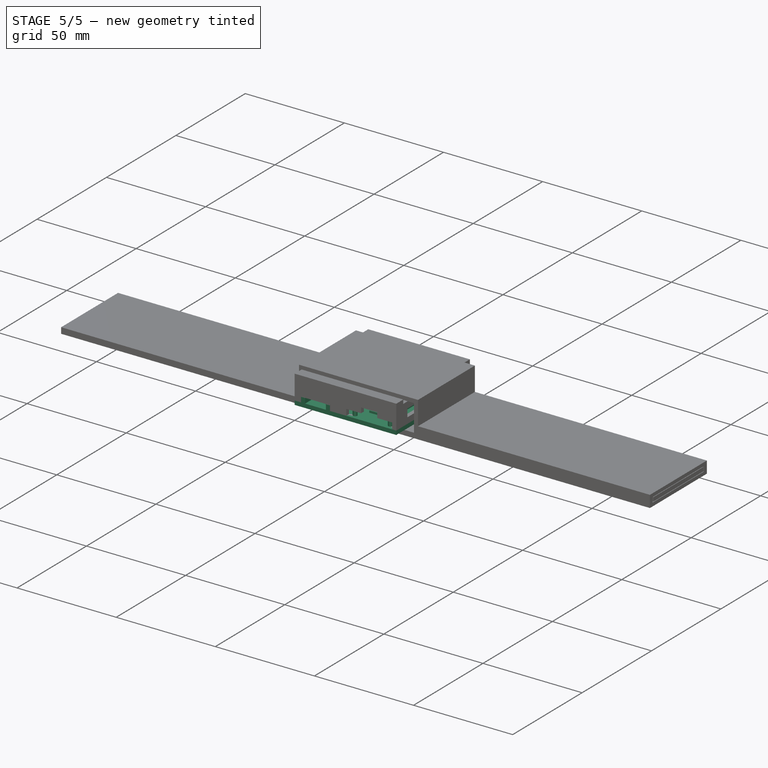
[diagram: stage 5 of 5 — iso view after this stage's code; geometry added in this stage tinted green]
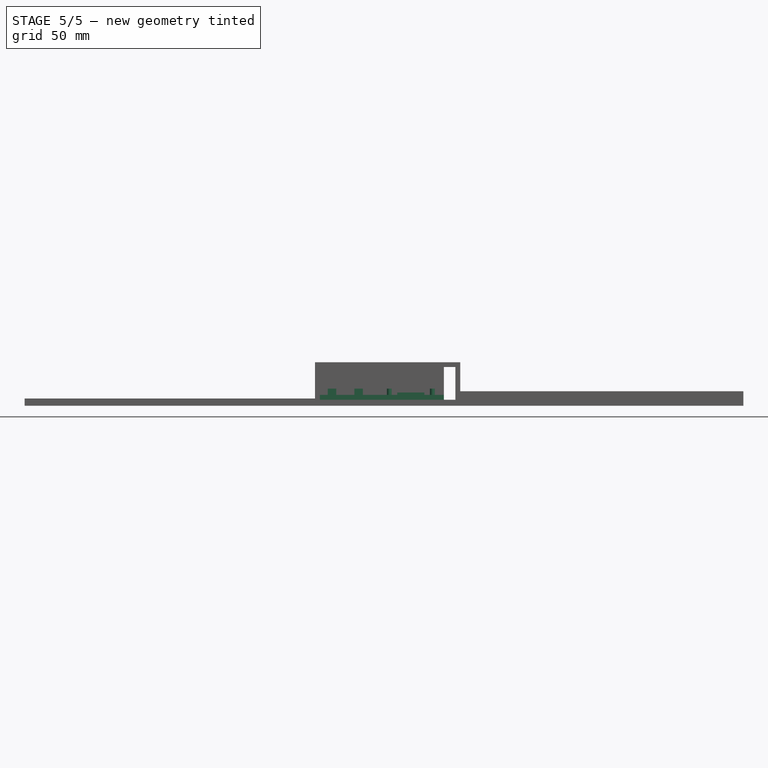
[diagram: stage 5 of 5 — front view after this stage's code; geometry added in this stage tinted green]
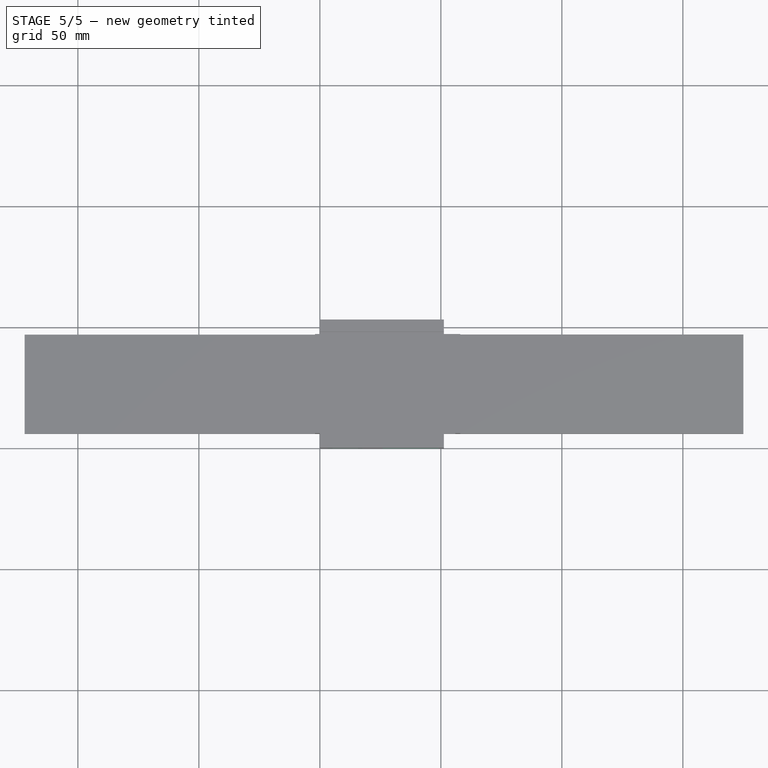
[diagram: stage 5 of 5 — top view after this stage's code; geometry added in this stage tinted green]
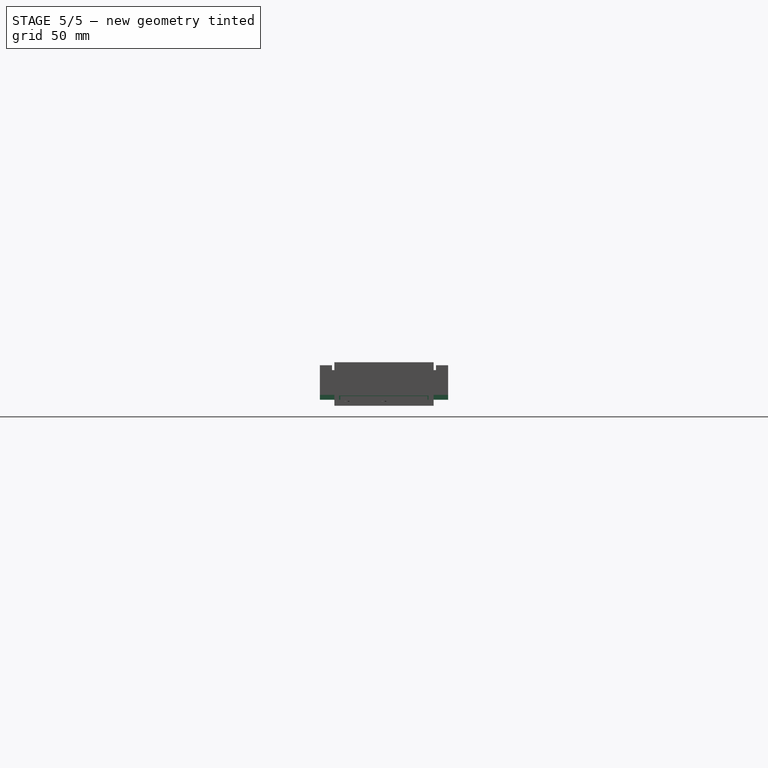
[diagram: stage 5 of 5 — right view after this stage's code; geometry added in this stage tinted green]
FEATURE [Part::Feature] Part__Feature  label="Board"
  shape: bbox 50.8 x 22.86 x 1.99 mm, 151 faces (baked)
FEATURE [Part::Feature] Part__Feature001  label="2X05_1.27MM_BOX_POSTS"
  Placement = pos=(24.663,11.43,1.99) rot=(0,0,-1;1.5708rad)
  shape: bbox 5.2 x 12.8 x 5 mm, 84 faces, 11 solids (baked)
FEATURE [Part::Feature] Part__Feature002  label="XTAL3215"
  Placement = pos=(29.4,17.272,1.99) rot=(0,0,1;0rad)
  shape: bbox 3.504 x 1.504 x 0.8036 mm, 30 faces (baked)
FEATURE [Part::Feature] Part__Feature003  label="BTN_KMR2_4.6X2.8"
  Placement = pos=(11.1,6.223,1.99) rot=(0,0,1;0rad)
  shape: bbox 4.609 x 2.809 x 1.949 mm, 256 faces (baked)
FEATURE [Part::Feature] Part__Feature004  label="BTN_KMR2_4.6X2.009"
  Placement = pos=(29.934,6.172,1.99) rot=(0,0,1;0rad)
  shape: bbox 4.609 x 2.809 x 1.949 mm, 256 faces (baked)
FEATURE [Part::Feature] Part__Feature005  label="SOT23-5"
  Placement = pos=(15.138,9.144,1.99) rot=(0,0,1;3.14159rad)
  shape: bbox 3 x 3 x 1.4 mm, 75 faces (baked)
FEATURE [Part::Feature] Part__Feature006  label="SOT23-006"
  Placement = pos=(18.974,13.386,1.99) rot=(0,0,1;3.14159rad)
  shape: bbox 3 x 3 x 1.4 mm, 75 faces (baked)
FEATURE [Part::Feature] Part__Feature007  label="CHIPLED_0805_NOOUTLINE"
  Placement = pos=(2.083,5.639,1.99) rot=(0,0,-1;1.5708rad)
  shape: bbox 2.02 x 1.25 x 1.1 mm, 52 faces (baked)
FEATURE [Part::Feature] Part__Feature008  label="CHIPLED_0805_NOOUTLINE001"
  Placement = pos=(2.54,17.272,1.99) rot=(0,0,1;1.5708rad)
  shape: bbox 2.02 x 1.25 x 1.1 mm, 52 faces (baked)
FEATURE [Part::Feature] Part__Feature009  label="CHIPLED_0805_NOOUTLINE002"
  Placement = pos=(44.006,18.352,1.99) rot=(0,0,1;1.5708rad)
  shape: bbox 2.02 x 1.25 x 1.1 mm, 52 faces (baked)
FEATURE [Part::Feature] Part__Feature010  label="JSTPH2"
  Placement = pos=(10.795,19.304,1.99) rot=(0,0,1;0rad)
  shape: bbox 7.9 x 8.6 x 4.8 mm, 126 faces, 5 solids (baked)
FEATURE [Part::Feature] Part__Feature011  label="4UCONN_20329_V2"
  Placement = pos=(4.445,11.43,1.99) rot=(0,0,-1;1.5708rad)
  shape: bbox 5.6 x 8.8 x 3 mm, 277 faces (baked)
FEATURE [Part::Feature] Part__Feature012  label="SOD-123"
  Placement = pos=(10.262,12.395,1.99) rot=(0,0,1;3.14159rad)
  shape: bbox 3.6 x 1.4 x 1.35 mm, 32 faces (baked)
FEATURE [Part::Feature] Part__Feature013  label="SOT23-R"
  Placement = pos=(9.817,9.55,1.99) rot=(0,0,1;0rad)
  shape: bbox 3.04 x 2.64 x 1.12 mm, 56 faces (baked)
FEATURE [Part::Feature] Part__Feature014  label="MDBT50"
  Placement = pos=(42.545,11.43,1.99) rot=(0,0,-1;1.5708rad)
  shape: bbox 15.5 x 10.5 x 2.05 mm, 22 faces, 3 solids (baked)
FEATURE [Part::Feature] Part__Feature015  label="USON8"
  Placement = pos=(40.767,4.953,1.99) rot=(0,0,1;3.14159rad)
  shape: bbox 3 x 2 x 0.8 mm, 88 faces, 9 solids (baked)
FEATURE [Part::Feature] Part__Feature016  label="LED3535"
  Placement = pos=(19.387,6.145,1.99) rot=(0,0,1;3.14159rad)
  shape: bbox 3.5 x 3.5 x 1.2 mm, 8 faces (baked)
FEATURE [Part::Feature] Part__Feature017  label="0603-NO"
  Placement = pos=(19.075,8.788,1.99) rot=(0,0,1;0rad)
  shape: bbox 1.6 x 0.9 x 0.8 mm, 14 faces (baked)
FEATURE [Part::Feature] Part__Feature018  label="0603-NO001"
  Placement = pos=(29.312,18.936,1.99) rot=(0,0,1;3.14159rad)
  shape: bbox 1.6 x 0.9 x 0.8 mm, 14 faces (baked)
FEATURE [Part::Feature] Part__Feature019  label="0603-NO002"
  Placement = pos=(26.264,18.974,1.99) rot=(0,0,1;3.14159rad)
  shape: bbox 1.6 x 0.9 x 0.8 mm, 14 faces (baked)
FEATURE [Part::Feature] Part__Feature020  label="0603-NO003"
  Placement = pos=(31.394,11.9,1.99) rot=(0,0,1;0rad)
  shape: bbox 1.6 x 0.9 x 0.8 mm, 14 faces (baked)
FEATURE [Part::Feature] Part__Feature021  label="0603-NO004"
  Placement = pos=(5.69,20.053,1.99) rot=(0,0,-1;1.5708rad)
  shape: bbox 0.9 x 1.6 x 0.8 mm, 14 faces (baked)
FEATURE [Part::Feature] Part__Feature022  label="0603-NO005"
  Placement = pos=(40.678,18.339,1.99) rot=(0,0,1;3.14159rad)
  shape: bbox 1.6 x 0.9 x 0.8 mm, 14 faces (baked)
FEATURE [Part::Feature] Part__Feature023  label="0603-NO006"
  Placement = pos=(6.756,7.379,1.99) rot=(0,0,1;1.5708rad)
  shape: bbox 0.9 x 1.6 x 0.8 mm, 14 faces (baked)
FEATURE [Part::Feature] Part__Feature024  label="0603-NO007"
  Placement = pos=(15.316,5.309,1.99) rot=(0,0,1;0rad)
  shape: bbox 1.6 x 0.9 x 0.8 mm, 14 faces (baked)
FEATURE [Part::Feature] Part__Feature025  label="0603-NO008"
  Placement = pos=(33.655,4.191,1.99) rot=(0,0,1;0rad)
  shape: bbox 1.6 x 0.9 x 0.8 mm, 14 faces (baked)
FEATURE [Part::Feature] Part__Feature026  label="0603-NO009"
  Placement = pos=(36.766,5.27,1.99) rot=(0,0,1;0rad)
  shape: bbox 1.6 x 0.9 x 0.8 mm, 14 faces (baked)
FEATURE [Part::Feature] Part__Feature027  label="0603-NO010"
  Placement = pos=(32.322,17.78,1.99) rot=(0,0,1;1.5708rad)
  shape: bbox 0.9 x 1.6 x 0.8 mm, 14 faces (baked)
FEATURE [Part::Feature] Part__Feature028  label="0805-NO"
  Placement = pos=(19.05,10.249,1.99) rot=(0,0,1;0rad)
  shape: bbox 2 x 1.25 x 1 mm, 14 faces (baked)
FEATURE [Part::Feature] Part__Feature029  label="0805-NO001"
  Placement = pos=(20.892,17.272,1.99) rot=(0,0,1;1.5708rad)
  shape: bbox 1.25 x 2 x 1 mm, 14 faces (baked)
FEATURE [Part::Feature] Part__Feature030  label="0805-NO002"
  Placement = pos=(12.294,9.855,1.99) rot=(0,0,1;1.5708rad)
  shape: bbox 1.25 x 2 x 1 mm, 14 faces (baked)
FEATURE [Part::Feature] Part__Feature031  label="0805-NO003"
  Placement = pos=(31.242,10.274,1.99) rot=(0,0,1;0rad)
  shape: bbox 2 x 1.25 x 1 mm, 14 faces (baked)
FEATURE [Part::Feature] Part__Feature032  label="0805-NO004"
  Placement = pos=(15.316,12.256,1.99) rot=(0,0,1;3.14159rad)
  shape: bbox 2 x 1.25 x 1 mm, 14 faces (baked)
FEATURE [Part::Feature] Part__Feature033  label="_0805MP"
  Placement = pos=(33.82,9.436,1.99) rot=(0,0,-1;1.5708rad)
  shape: bbox 1.27 x 2.02 x 0.8697 mm, 66 faces, 3 solids (baked)
FEATURE [Part::Feature] Part__Feature034  label="RESPACK_4X0603"
  Placement = pos=(17.374,17.501,1.99) rot=(0,0,1;3.14159rad)
  shape: bbox 3.05 x 1.6 x 0.5 mm, 62 faces (baked)
FEATURE [App::Part] PCB_Component  label="PCB Component"
  Group = -> [Part__Feature,Part__Feature001,Part__Feature002,Part__Feature003,Part__Feature004,Part__Feature005,Part__Feature006,Part__Feature007,Part__Feature008,Part__Feature009,Part__Feature010,Part__Feature011,Part__Feature012,Part__Feature013,Part__Feature014,Part__Feature015,Part__Feature016,Part__Feature017,Part__Feature018,Part__Feature019,Part__Feature020,Part__Feature021,Part__Feature022,+12 more]
  Origin = -> Origin
FEATURE [App::Part] Adafruit_nRF52840_Bluefruit_Feather_Express_Rev_D_v2  label="arduino"
  Group = -> [PCB_Component]
  Origin = -> Origin001
  Placement = pos=(49,0,3) rot=(0,0,-1;4.71239rad)
FEATURE [Part::Feature] Part__Feature090  label="CL-SA_s_C003"
  Placement = pos=(-0.8,0,-1e-15) rot=(0,0,1;0rad)
  shape: bbox 8.3 x 3.1 x 2.4 mm, 31 faces (baked)
FEATURE [Part::Feature] Part__Feature091  label="CL-SA_c_C003"
  Placement = pos=(0,-4.5,-1e-15) rot=(0,0,1;0rad)
  shape: bbox 10 x 10 x 2.54 mm, 56 faces (baked)
FEATURE [App::Part] CL_SA_12C_023  label="switch"
  Group = -> [Part__Feature090,Part__Feature091]
  Origin = -> Origin010
  Placement = pos=(10.5,0,3.27) rot=(0,0,1;3.14159rad)
FEATURE [Part::Feature] Part__Feature092  label="400mAh Battery v003"
  Placement = pos=(19.25,50.75,2) rot=(0,0,1;3.14159rad)
  shape: bbox 17 x 36 x 7.6 mm, 24 faces, 2 solids (baked)
FEATURE [Sketcher::SketchObject] Sketch005
  FullyConstrained = true
  sketch-geometry (4):
    g0: LineSegment StartX=0 StartY=0 StartZ=0 EndX=51.25 EndY=0 EndZ=0
    g1: LineSegment StartX=51.25 StartY=0 StartZ=0 EndX=51.25 EndY=53 EndZ=0
    g2: LineSegment StartX=51.25 StartY=53 StartZ=0 EndX=0 EndY=53 EndZ=0
    g3: LineSegment StartX=0 StartY=53 StartZ=0 EndX=0 EndY=0 EndZ=0
  constraints (11):
    c: Coincident(g0,g1)
    c: Coincident(g1,g2)
    c: Coincident(g2,g3)
    c: Coincident(g3,g0)
    c: Horizontal(g0)
    c: Horizontal(g2)
    c: Vertical(g1)
    c: Vertical(g3)
    c: Coincident(g0,g-1)
    c: DistanceX(g1) = 51.25
    c: DistanceY(g2) = 53
FEATURE [Part::Extrusion] Extrude  label="base"
  Base = -> Sketch005
  Dir = (0,0,1)
  DirMode = 2
  FaceMakerClass = Part::FaceMakerBullseye
  LengthFwd = 2
  LengthRev = 0
  Solid = true
  Symmetric = false
FEATURE [Sketcher::SketchObject] Sketch006
  FullyConstrained = true
  Placement = pos=(0,0,2) rot=(0,0,1;0rad)
  sketch-geometry (4):
    g0: LineSegment StartX=32 StartY=46 StartZ=0 EndX=43.2 EndY=46 EndZ=0
    g1: LineSegment StartX=43.2 StartY=46 StartZ=0 EndX=43.2 EndY=8 EndZ=0
    g2: LineSegment StartX=43.2 StartY=8 StartZ=0 EndX=32 EndY=8 EndZ=0
    g3: LineSegment StartX=32 StartY=8 StartZ=0 EndX=32 EndY=46 EndZ=0
  constraints (12):
    c: Coincident(g0,g1)
    c: Coincident(g1,g2)
    c: Coincident(g2,g3)
    c: Coincident(g3,g0)
    c: Horizontal(g0)
    c: Horizontal(g2)
    c: Vertical(g1)
    c: Vertical(g3)
    c: DistanceY(g2) = 8
    c: DistanceX(g2) = 32
    c: DistanceY(g0) = 46
    c: DistanceX(g2,g2) = 11.2
FEATURE [Part::Extrusion] Extrude001  label="base002"
  Base = -> Sketch006
  Dir = (0,0,1)
  DirMode = 2
  FaceMakerClass = Part::FaceMakerBullseye
  LengthFwd = 1
  LengthRev = 0
  Solid = true
  Symmetric = false
FEATURE [Part::Extrusion] Extrude005  label="base003"
  Base = -> Sketch007
  Dir = (0,0,1)
  DirMode = 2
  FaceMakerClass = Part::FaceMakerBullseye
  LengthFwd = 2.6
  LengthRev = 0
  Solid = true
  Symmetric = false
FEATURE [Part::MultiFuse] Fusion002  label="base004"
  Shapes = -> [Extrude,Extrude001,Extrude005]
FEATURE [Part::Feature] Part__Feature103  label="Board004"
  shape: bbox 20.32 x 12.7 x 1.57 mm, 29 faces (baked)
FEATURE [Part::Feature] Part__Feature104  label="_0805MP004"
  Placement = pos=(1.524,6.096,1.57) rot=(0,0,1;1.5708rad)
  shape: bbox 1.25 x 2 x 1 mm, 14 faces (baked)
FEATURE [Part::Feature] Part__Feature105  label="MSOP8_0.65MM002"
  Placement = pos=(10.16,6.35,1.57) rot=(0,0,-1;1.5708rad)
  shape: bbox 4.9 x 3 x 1.5 mm, 100 faces (baked)
FEATURE [Part::Feature] Part__Feature106  label="0805-NO020"
  Placement = pos=(3.556,6.096,1.57) rot=(0,0,-1;1.5708rad)
  shape: bbox 1.27 x 2.02 x 0.8697 mm, 66 faces, 3 solids (baked)
FEATURE [Part::Feature] Part__Feature107  label="0805-NO021"
  Placement = pos=(5.588,6.096,1.57) rot=(0,0,-1;1.5708rad)
  shape: bbox 1.27 x 2.02 x 0.8697 mm, 66 faces, 3 solids (baked)
FEATURE [Part::Feature] Part__Feature108  label="0805-NO022"
  Placement = pos=(14.732,6.096,1.57) rot=(0,0,-1;1.5708rad)
  shape: bbox 1.27 x 2.02 x 0.8697 mm, 66 faces, 3 solids (baked)
FEATURE [Part::Feature] Part__Feature109  label="0805-NO023"
  Placement = pos=(16.764,6.096,1.57) rot=(0,0,-1;1.5708rad)
  shape: bbox 1.27 x 2.02 x 0.8697 mm, 66 faces, 3 solids (baked)
FEATURE [Part::Feature] Part__Feature110  label="0805-NO024"
  Placement = pos=(18.796,6.096,1.57) rot=(0,0,-1;1.5708rad)
  shape: bbox 1.27 x 2.02 x 0.8697 mm, 66 faces, 3 solids (baked)
FEATURE [App::Part] PCB_Component004  label="PCB Component004"
  Group = -> [Part__Feature103,Part__Feature104,Part__Feature105,Part__Feature106,Part__Feature107,Part__Feature108,Part__Feature109,Part__Feature110]
  Origin = -> Origin013
FEATURE [App::Part] Adafruit_MCP9808_Breakout_v2001  label="Adafruit MCP9808 Breakout v004"
  Group = -> [PCB_Component004]
  Origin = -> Origin014
  Placement = pos=(145,8.65,-1) rot=(0.707107,0.707107,0;3.14159rad)
FEATURE [Part::Box] Box001  label="HRMonitor"
  AttacherType = Attacher::AttachEngine3D
  Height = 1.5
  Length = 12.7
  Placement = pos=(145,31.5,-2.5) rot=(0,0,1;0rad)
  Width = 12.7
FEATURE [Part::Cut] Cut001  label="bottom"
  Base = -> Fusion002
  Tool = -> Fusion006
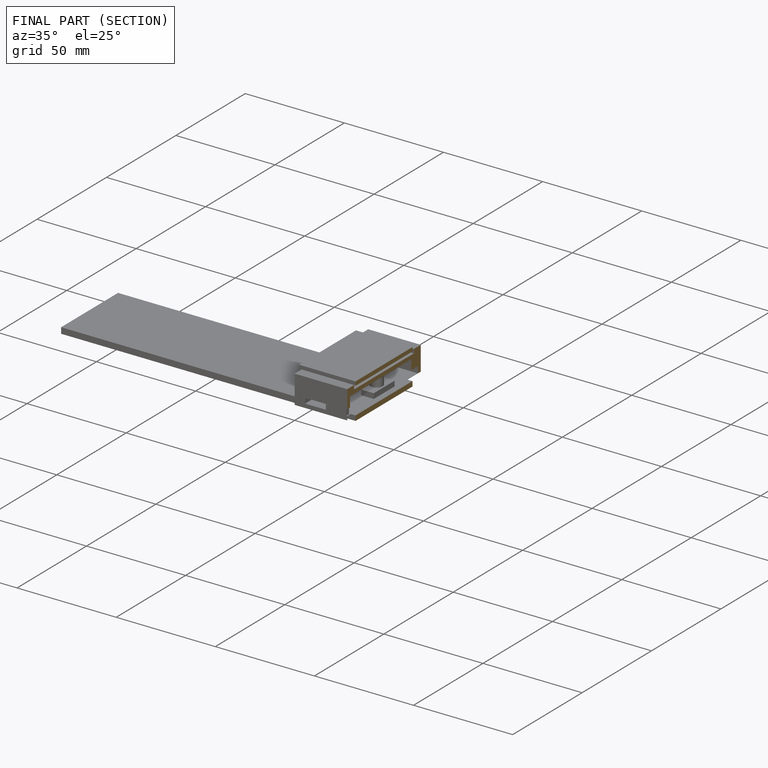
[diagram: finished part — half-section view (interior)]
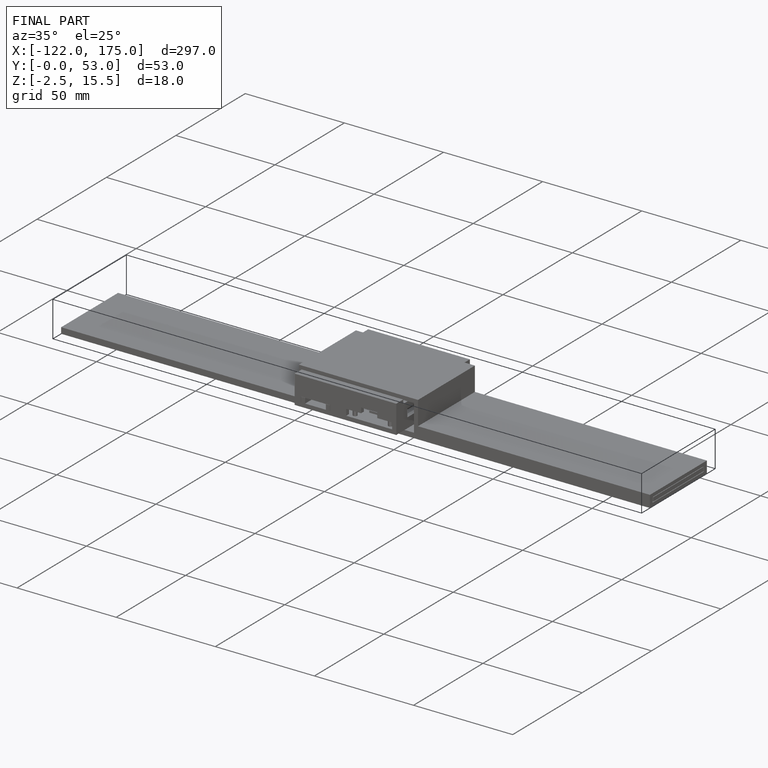
[diagram: finished part — iso view with bounding-box wireframe]
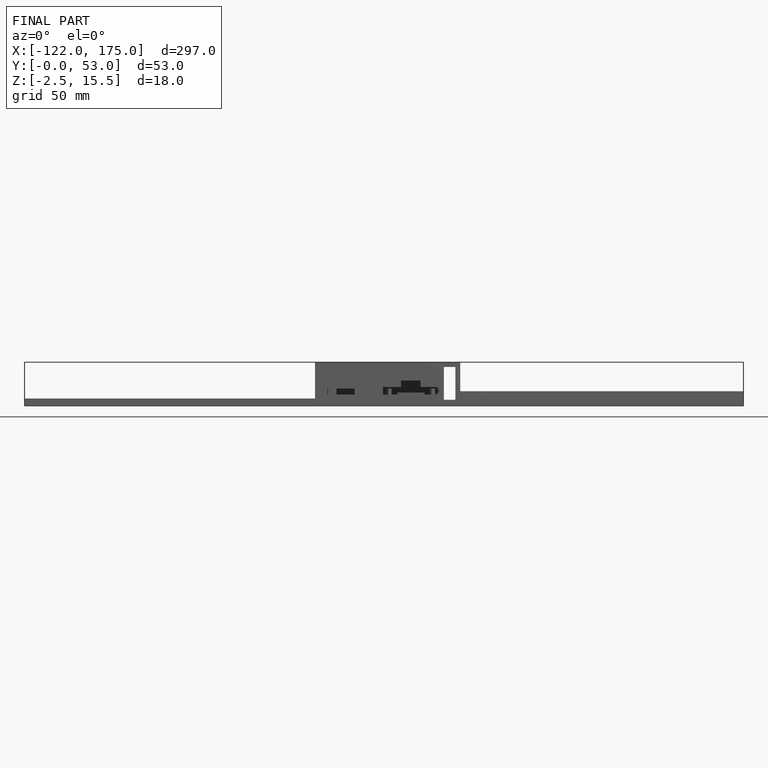
[diagram: finished part — front view with bounding-box wireframe]
